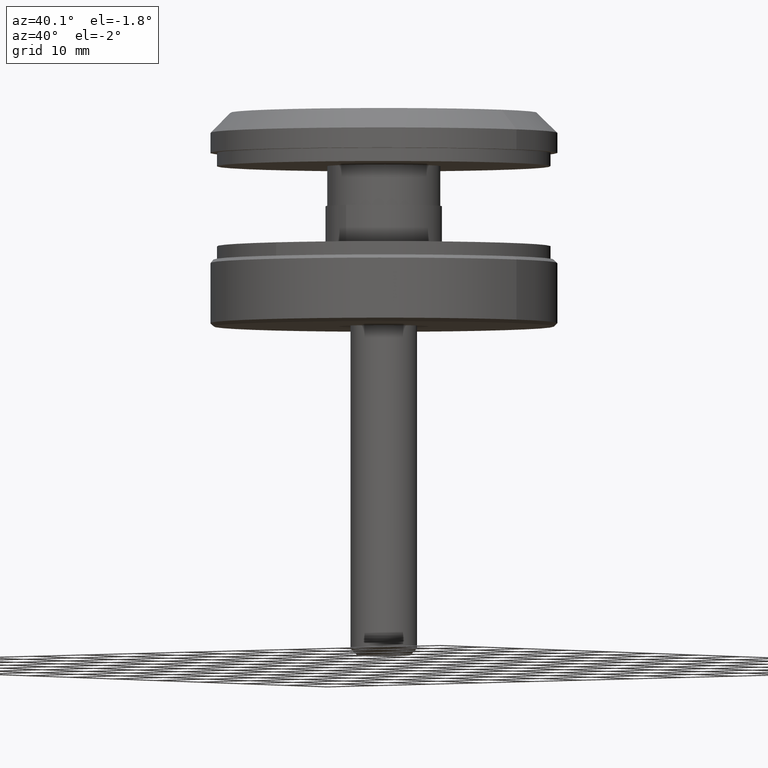
[diagram: clean part render]
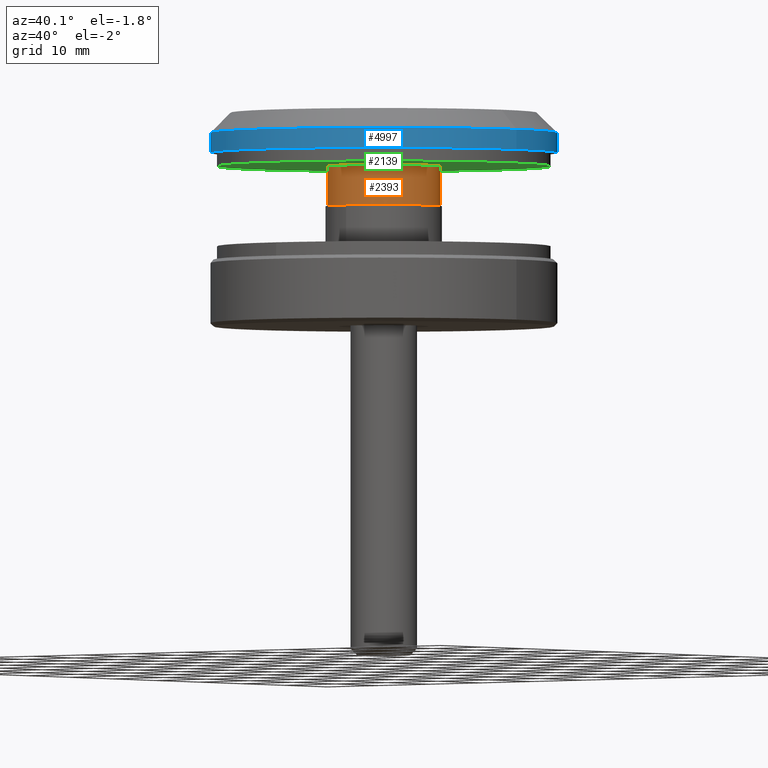
[diagram: same view with three faces highlighted in distinct colors, each labeled with its STEP entity id]
A machine part, auxiliary view with three faces highlighted in distinct colors.
Their STEP definitions:

[orange] entity #2393 — the highlighted cylindrical surface (bore or boss wall) has radius 8.5 mm, axis along (0, -0, 1).
#621 = FACE_OUTER_BOUND ( 'NONE', #12202, .T. ) ;
#1440 = FACE_OUTER_BOUND ( 'NONE', #11851, .T. ) ;
#1609 = AXIS2_PLACEMENT_3D ( 'NONE', #9981, #2213, #4820 ) ;
#2213 = DIRECTION ( 'NONE',  ( 0.0000000000000000000, 1.000000000000000000, 0.0000000000000000000 ) ) ;
#2393 = ADVANCED_FACE ( 'NONE', ( #1440, #621 ), #13253, .T. ) ;
#3620 = ORIENTED_EDGE ( 'NONE', *, *, #8162, .T. ) ;
#4297 = AXIS2_PLACEMENT_3D ( 'NONE', #16120, #13549, #9659 ) ;
#4672 = VERTEX_POINT ( 'NONE', #12744 ) ;
#4820 = DIRECTION ( 'NONE',  ( 0.0000000000000000000, 0.0000000000000000000, 1.000000000000000000 ) ) ;
#5005 = DIRECTION ( 'NONE',  ( 0.0000000000000000000, 0.0000000000000000000, -1.000000000000000000 ) ) ;
#5012 = ORIENTED_EDGE ( 'NONE', *, *, #12821, .F. ) ;
#5216 = CARTESIAN_POINT ( 'NONE',  ( 0.0000000000000000000, 8.000000000000000000, 8.500000000000000000 ) ) ;
#5254 = CIRCLE ( 'NONE', #4297, 8.500000000000000000 ) ;
#6417 = CARTESIAN_POINT ( 'NONE',  ( 0.0000000000000000000, 8.000000000000000000, 0.0000000000000000000 ) ) ;
#8162 = EDGE_CURVE ( 'NONE', #4672, #4672, #5254, .T. ) ;
#9335 = VERTEX_POINT ( 'NONE', #5216 ) ;
#9659 = DIRECTION ( 'NONE',  ( 0.0000000000000000000, 0.0000000000000000000, 1.000000000000000000 ) ) ;
#9981 = CARTESIAN_POINT ( 'NONE',  ( 0.0000000000000000000, 8.000000000000000000, 0.0000000000000000000 ) ) ;
#11499 = DIRECTION ( 'NONE',  ( -0.0000000000000000000, -1.000000000000000000, -0.0000000000000000000 ) ) ;
#11851 = EDGE_LOOP ( 'NONE', ( #5012 ) ) ;
#12140 = AXIS2_PLACEMENT_3D ( 'NONE', #6417, #11499, #5005 ) ;
#12202 = EDGE_LOOP ( 'NONE', ( #3620 ) ) ;
#12744 = CARTESIAN_POINT ( 'NONE',  ( 0.0000000000000000000, 2.000000000000000000, 8.500000000000000000 ) ) ;
#12821 = EDGE_CURVE ( 'NONE', #9335, #9335, #14265, .T. ) ;
#13253 = CYLINDRICAL_SURFACE ( 'NONE', #12140, 8.500000000000000000 ) ;
#13549 = DIRECTION ( 'NONE',  ( 0.0000000000000000000, 1.000000000000000000, 0.0000000000000000000 ) ) ;
#14265 = CIRCLE ( 'NONE', #1609, 8.500000000000000000 ) ;
#16120 = CARTESIAN_POINT ( 'NONE',  ( 0.0000000000000000000, 2.000000000000000000, 0.0000000000000000000 ) ) ;

[blue] entity #4997 — the highlighted cylindrical surface (bore or boss wall) has radius 26 mm, axis along (-0, -0, -1).
#710 = FACE_OUTER_BOUND ( 'NONE', #13699, .T. ) ;
#1003 = CARTESIAN_POINT ( 'NONE',  ( 25.99999999999999600, 0.0000000000000000000, 0.0000000000000000000 ) ) ;
#1080 = CARTESIAN_POINT ( 'NONE',  ( 0.0000000000000000000, 0.0000000000000000000, 6.000000000000000000 ) ) ;
#1300 = ORIENTED_EDGE ( 'NONE', *, *, #8043, .T. ) ;
#2251 = CIRCLE ( 'NONE', #5772, 25.99999999999999600 ) ;
#2526 = AXIS2_PLACEMENT_3D ( 'NONE', #4226, #12146, #5472 ) ;
#3630 = VERTEX_POINT ( 'NONE', #1003 ) ;
#4226 = CARTESIAN_POINT ( 'NONE',  ( 0.0000000000000000000, 0.0000000000000000000, 0.0000000000000000000 ) ) ;
#4997 = ADVANCED_FACE ( 'NONE', ( #13341, #710 ), #16393, .T. ) ;
#5472 = DIRECTION ( 'NONE',  ( 1.000000000000000000, 0.0000000000000000000, 0.0000000000000000000 ) ) ;
#5772 = AXIS2_PLACEMENT_3D ( 'NONE', #13015, #9121, #14246 ) ;
#5899 = VERTEX_POINT ( 'NONE', #10391 ) ;
#6984 = ORIENTED_EDGE ( 'NONE', *, *, #15426, .T. ) ;
#8043 = EDGE_CURVE ( 'NONE', #3630, #3630, #10911, .T. ) ;
#9121 = DIRECTION ( 'NONE',  ( 0.0000000000000000000, 0.0000000000000000000, -1.000000000000000000 ) ) ;
#10062 = DIRECTION ( 'NONE',  ( -1.000000000000000000, 0.0000000000000000000, 0.0000000000000000000 ) ) ;
#10391 = CARTESIAN_POINT ( 'NONE',  ( 25.99999999999999600, 0.0000000000000000000, 2.999999999999983100 ) ) ;
#10911 = CIRCLE ( 'NONE', #2526, 25.99999999999999600 ) ;
#11683 = AXIS2_PLACEMENT_3D ( 'NONE', #1080, #12822, #10062 ) ;
#12146 = DIRECTION ( 'NONE',  ( 0.0000000000000000000, 0.0000000000000000000, 1.000000000000000000 ) ) ;
#12822 = DIRECTION ( 'NONE',  ( -0.0000000000000000000, -0.0000000000000000000, -1.000000000000000000 ) ) ;
#13015 = CARTESIAN_POINT ( 'NONE',  ( 0.0000000000000000000, 0.0000000000000000000, 2.999999999999983100 ) ) ;
#13341 = FACE_OUTER_BOUND ( 'NONE', #13363, .T. ) ;
#13363 = EDGE_LOOP ( 'NONE', ( #6984 ) ) ;
#13699 = EDGE_LOOP ( 'NONE', ( #1300 ) ) ;
#14246 = DIRECTION ( 'NONE',  ( 1.000000000000000000, 0.0000000000000000000, 0.0000000000000000000 ) ) ;
#15426 = EDGE_CURVE ( 'NONE', #5899, #5899, #2251, .T. ) ;
#16393 = CYLINDRICAL_SURFACE ( 'NONE', #11683, 25.99999999999999600 ) ;

[green] entity #2139 — the highlighted planar face has unit normal (0, 0, -1).
#2139 = ADVANCED_FACE ( 'NONE', ( #8568, #14061 ), #7641, .T. ) ;
#2497 = CARTESIAN_POINT ( 'NONE',  ( 0.0000000000000000000, 2.000000000000000000, 0.0000000000000000000 ) ) ;
#2618 = DIRECTION ( 'NONE',  ( 0.0000000000000000000, 1.000000000000000000, 0.0000000000000000000 ) ) ;
#2771 = CARTESIAN_POINT ( 'NONE',  ( 0.0000000000000000000, 2.000000000000000000, 25.00000000000000000 ) ) ;
#3652 = CIRCLE ( 'NONE', #12408, 25.00000000000000000 ) ;
#4297 = AXIS2_PLACEMENT_3D ( 'NONE', #16120, #13549, #9659 ) ;
#4672 = VERTEX_POINT ( 'NONE', #12744 ) ;
#5254 = CIRCLE ( 'NONE', #4297, 8.500000000000000000 ) ;
#6387 = ORIENTED_EDGE ( 'NONE', *, *, #8162, .F. ) ;
#6880 = AXIS2_PLACEMENT_3D ( 'NONE', #7522, #16648, #8836 ) ;
#7522 = CARTESIAN_POINT ( 'NONE',  ( 0.0000000000000000000, 2.000000000000000000, 0.0000000000000000000 ) ) ;
#7641 = PLANE ( 'NONE',  #6880 ) ;
#8162 = EDGE_CURVE ( 'NONE', #4672, #4672, #5254, .T. ) ;
#8568 = FACE_OUTER_BOUND ( 'NONE', #9547, .T. ) ;
#8836 = DIRECTION ( 'NONE',  ( 0.0000000000000000000, -0.0000000000000000000, 1.000000000000000000 ) ) ;
#9207 = DIRECTION ( 'NONE',  ( 0.0000000000000000000, 0.0000000000000000000, 1.000000000000000000 ) ) ;
#9547 = EDGE_LOOP ( 'NONE', ( #9882 ) ) ;
#9659 = DIRECTION ( 'NONE',  ( 0.0000000000000000000, 0.0000000000000000000, 1.000000000000000000 ) ) ;
#9668 = EDGE_LOOP ( 'NONE', ( #6387 ) ) ;
#9882 = ORIENTED_EDGE ( 'NONE', *, *, #13807, .T. ) ;
#12408 = AXIS2_PLACEMENT_3D ( 'NONE', #2497, #2618, #9207 ) ;
#12744 = CARTESIAN_POINT ( 'NONE',  ( 0.0000000000000000000, 2.000000000000000000, 8.500000000000000000 ) ) ;
#13549 = DIRECTION ( 'NONE',  ( 0.0000000000000000000, 1.000000000000000000, 0.0000000000000000000 ) ) ;
#13807 = EDGE_CURVE ( 'NONE', #14022, #14022, #3652, .T. ) ;
#14022 = VERTEX_POINT ( 'NONE', #2771 ) ;
#14061 = FACE_BOUND ( 'NONE', #9668, .T. ) ;
#16120 = CARTESIAN_POINT ( 'NONE',  ( 0.0000000000000000000, 2.000000000000000000, 0.0000000000000000000 ) ) ;
#16648 = DIRECTION ( 'NONE',  ( 0.0000000000000000000, 1.000000000000000000, 0.0000000000000000000 ) ) ;